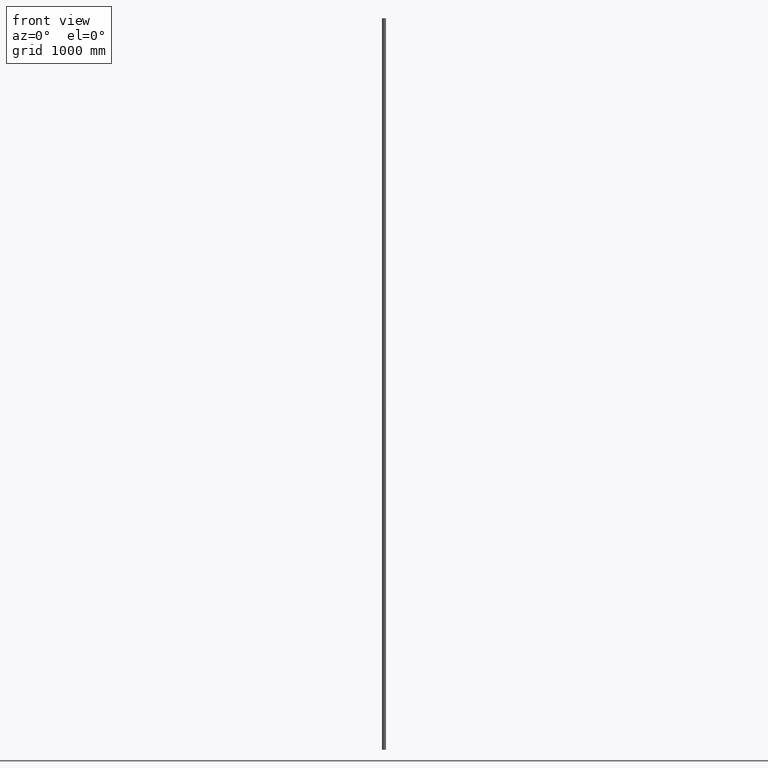
[diagram: clean part render]
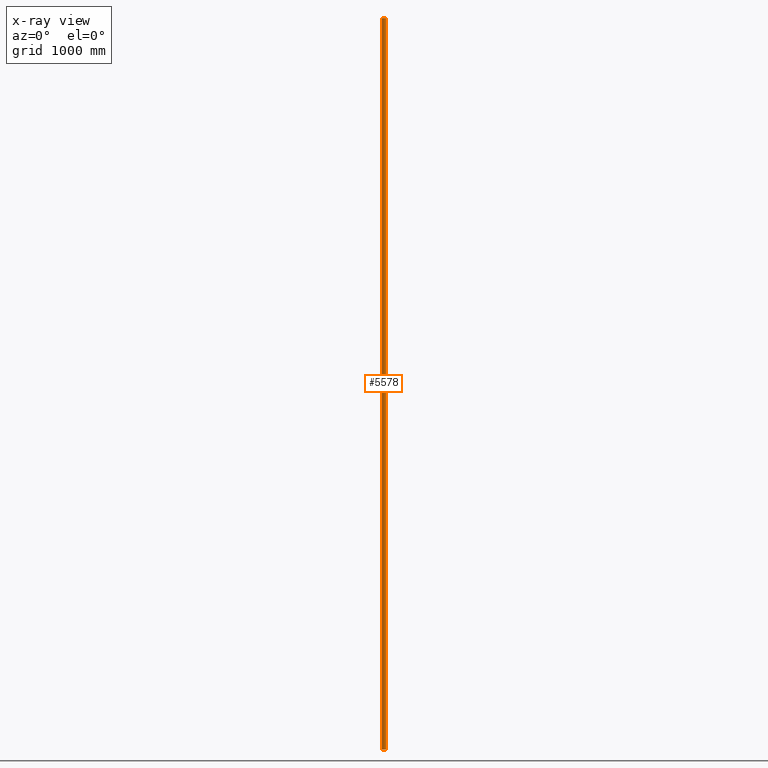
[diagram: x-ray — body ghosted, one internal face saturated and labeled with its STEP entity id]
A machine part, front view, then the same camera in x-ray: the body is ghosted and one INTERNAL B-rep face — a face not visible from any outside direction — is saturated and labeled: STEP entity #5578.
In plain terms, the highlighted cylindrical surface (bore or boss wall) has radius 16.85 mm, axis along (-0, -0, -1).
Its self-contained STEP definition (entity closure, byte-faithful):
#96 = DIRECTION ( 'NONE',  ( -0.000000000000000000, -0.000000000000000000, -1.000000000000000000 ) ) ;
#713 = VERTEX_POINT ( 'NONE', #2150 ) ;
#1489 = EDGE_CURVE ( 'NONE', #3562, #3562, #3537, .T. ) ;
#2150 = CARTESIAN_POINT ( 'NONE',  ( 16.85000000000000142, 0.000000000000000000, 3000.000000000000000 ) ) ;
#2682 = DIRECTION ( 'NONE',  ( 1.000000000000000000, 0.000000000000000000, 0.000000000000000000 ) ) ;
#3071 = ORIENTED_EDGE ( 'NONE', *, *, #1489, .T. ) ;
#3110 = FACE_OUTER_BOUND ( 'NONE', #7426, .T. ) ;
#3172 = AXIS2_PLACEMENT_3D ( 'NONE', #7016, #96, #7056 ) ;
#3537 = CIRCLE ( 'NONE', #4596, 16.85000000000000142 ) ;
#3562 = VERTEX_POINT ( 'NONE', #10783 ) ;
#4377 = CIRCLE ( 'NONE', #7068, 16.85000000000000142 ) ;
#4527 = CARTESIAN_POINT ( 'NONE',  ( 0.000000000000000000, 0.000000000000000000, -3000.000000000000000 ) ) ;
#4596 = AXIS2_PLACEMENT_3D ( 'NONE', #4527, #10614, #2682 ) ;
#5578 = ADVANCED_FACE ( 'NONE', ( #8707, #3110 ), #8290, .T. ) ;
#6172 = EDGE_LOOP ( 'NONE', ( #7577 ) ) ;
#7016 = CARTESIAN_POINT ( 'NONE',  ( 0.000000000000000000, 0.000000000000000000, 3000.000000000000000 ) ) ;
#7056 = DIRECTION ( 'NONE',  ( -1.000000000000000000, 0.000000000000000000, 0.000000000000000000 ) ) ;
#7068 = AXIS2_PLACEMENT_3D ( 'NONE', #8952, #7173, #7886 ) ;
#7173 = DIRECTION ( 'NONE',  ( 0.000000000000000000, 0.000000000000000000, 1.000000000000000000 ) ) ;
#7426 = EDGE_LOOP ( 'NONE', ( #3071 ) ) ;
#7577 = ORIENTED_EDGE ( 'NONE', *, *, #11138, .F. ) ;
#7886 = DIRECTION ( 'NONE',  ( 1.000000000000000000, 0.000000000000000000, 0.000000000000000000 ) ) ;
#8290 = CYLINDRICAL_SURFACE ( 'NONE', #3172, 16.85000000000000142 ) ;
#8707 = FACE_OUTER_BOUND ( 'NONE', #6172, .T. ) ;
#8952 = CARTESIAN_POINT ( 'NONE',  ( 0.000000000000000000, 0.000000000000000000, 3000.000000000000000 ) ) ;
#10614 = DIRECTION ( 'NONE',  ( 0.000000000000000000, 0.000000000000000000, 1.000000000000000000 ) ) ;
#10783 = CARTESIAN_POINT ( 'NONE',  ( 16.85000000000000142, 0.000000000000000000, -3000.000000000000000 ) ) ;
#11138 = EDGE_CURVE ( 'NONE', #713, #713, #4377, .T. ) ;